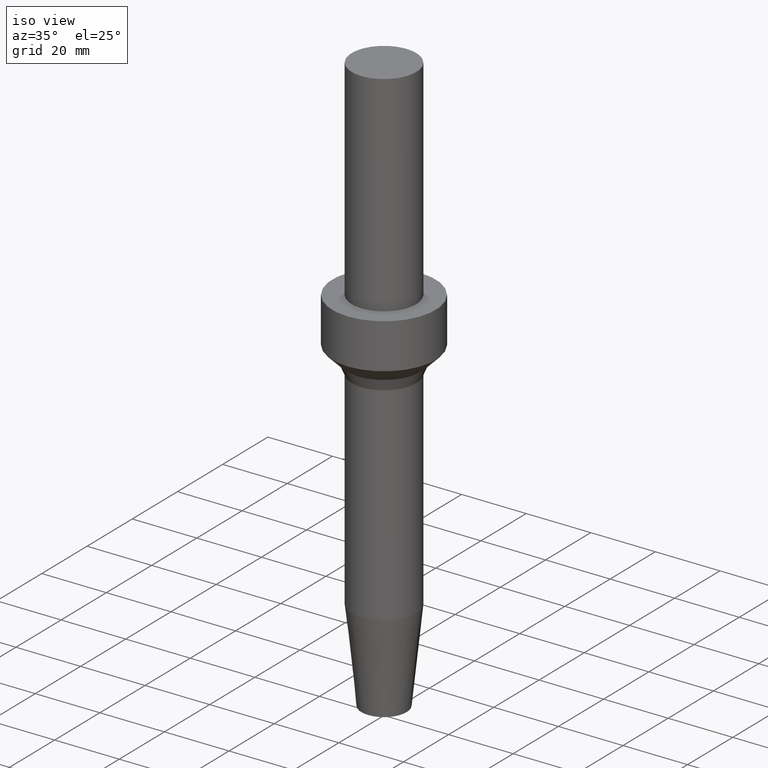
[diagram: clean part render]
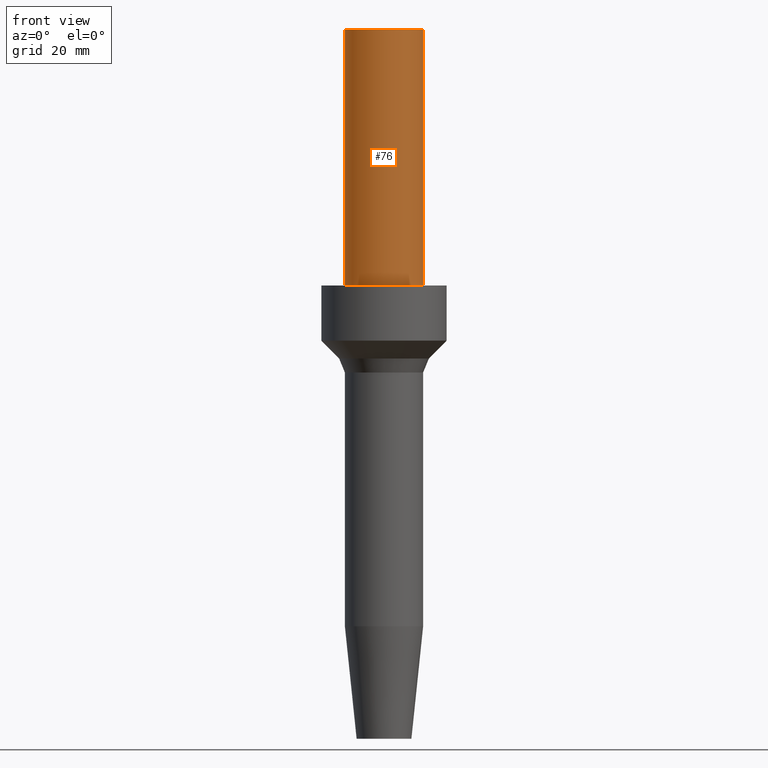
[diagram: tour spotlight — one face highlighted and labeled with its STEP entity id]
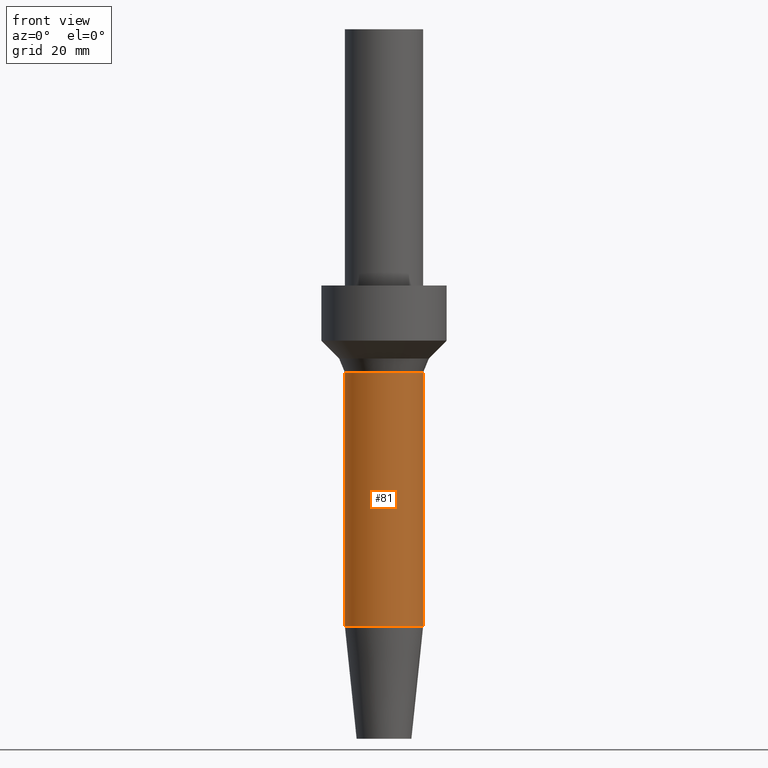
[diagram: tour spotlight — one face highlighted and labeled with its STEP entity id]
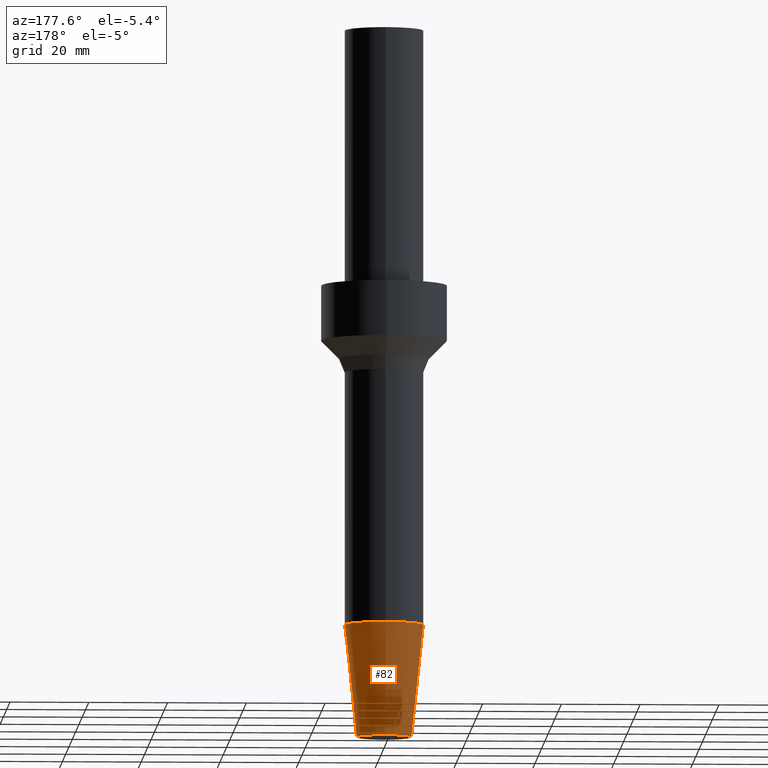
[diagram: tour spotlight — one face highlighted and labeled with its STEP entity id]
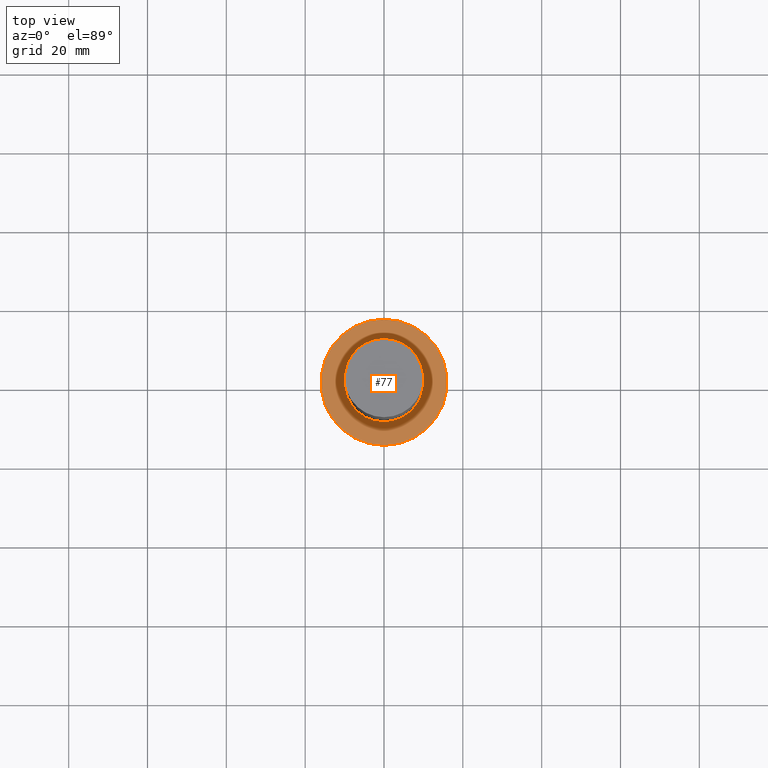
[diagram: tour spotlight — one face highlighted and labeled with its STEP entity id]
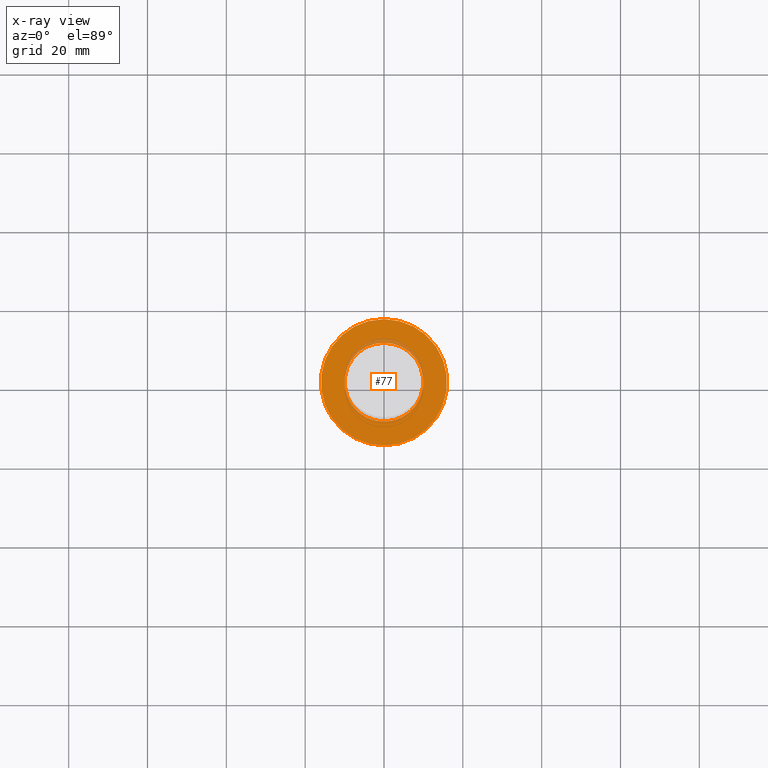
[diagram: x-ray of the same camera — body ghosted, this tour face saturated]
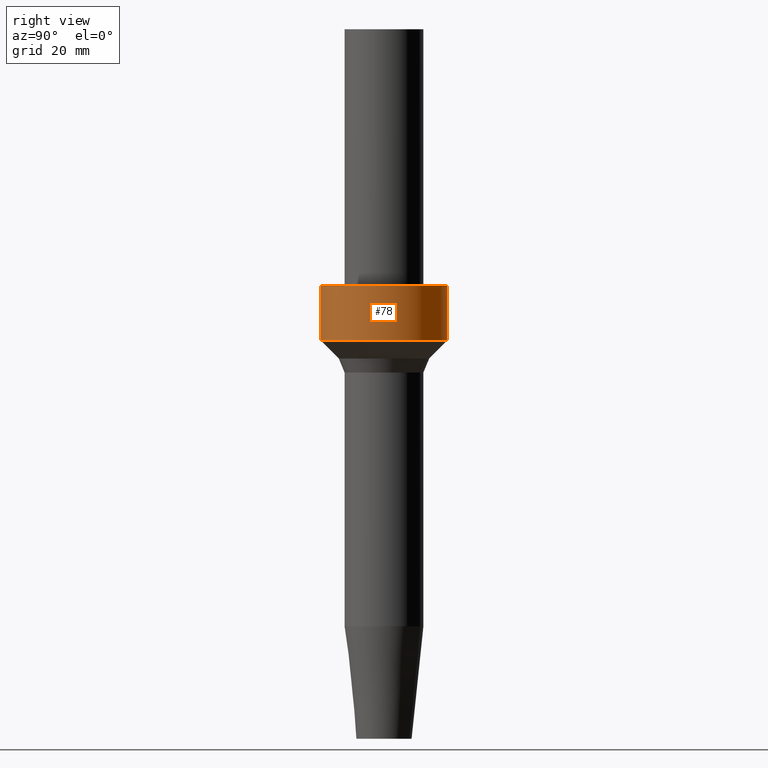
[diagram: tour spotlight — one face highlighted and labeled with its STEP entity id]
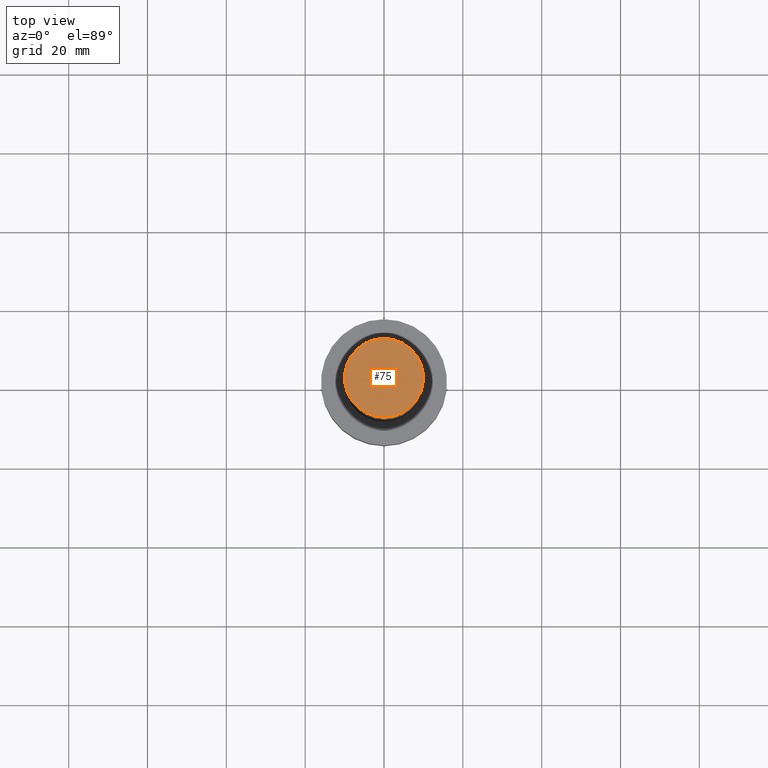
[diagram: tour spotlight — one face highlighted and labeled with its STEP entity id]
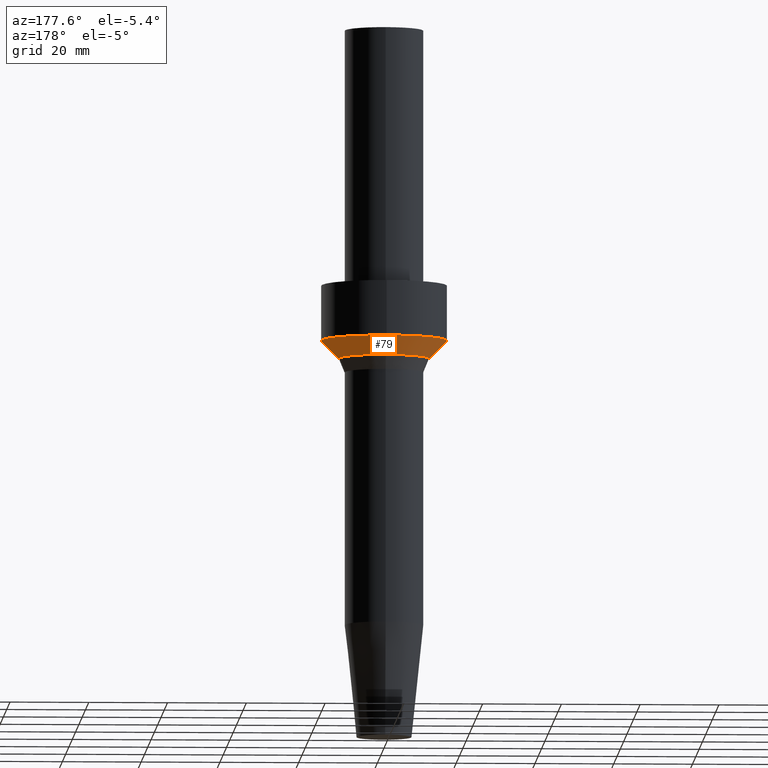
[diagram: tour spotlight — one face highlighted and labeled with its STEP entity id]
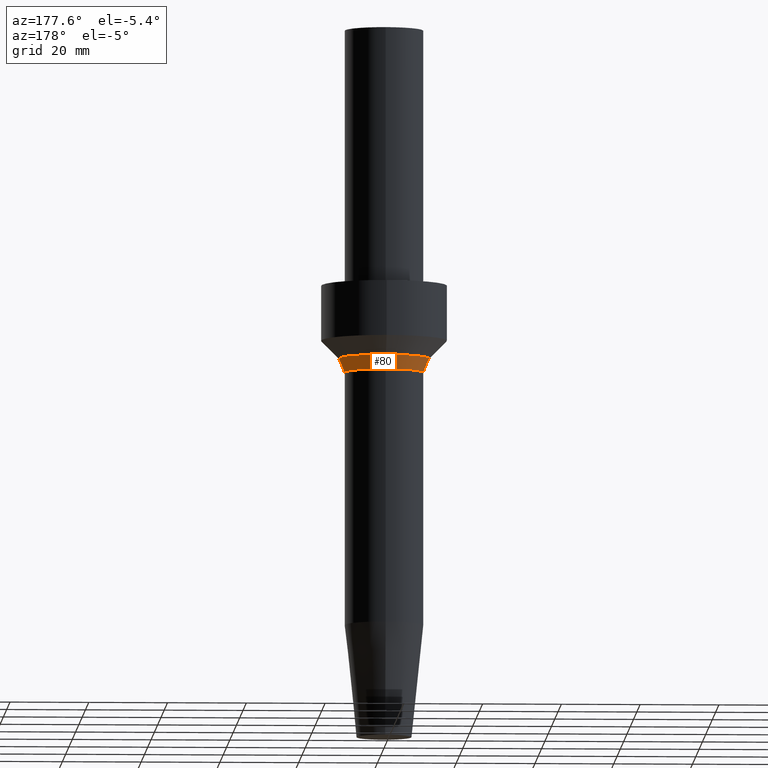
[diagram: tour spotlight — one face highlighted and labeled with its STEP entity id]
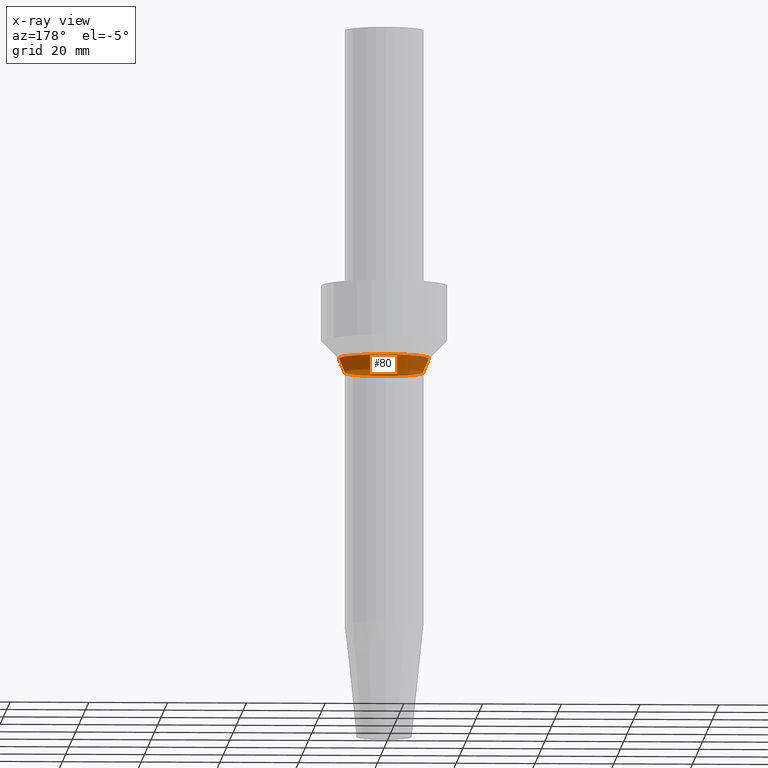
[diagram: x-ray of the same camera — body ghosted, this tour face saturated]
A machine part: a face-by-face anatomy tour. The part has 9 B-rep faces; the first image is the clean iso view, then the 8 largest visible faces are spotlighted one at a time (largest first), each with its STEP entity span.

Face 1 — front view, entity #76. In plain terms, the highlighted cylindrical surface (bore or boss wall) has radius 10 mm, axis along (-0, 0, 1).
Definition (entity closure, byte-faithful):
#76=ADVANCED_FACE('',(#87,#88),#89,.T.);
#87=FACE_BOUND('',#112,.T.);
#88=FACE_BOUND('',#113,.T.);
#89=CYLINDRICAL_SURFACE('',#114,10.0000000004299);
#112=EDGE_LOOP('',(#139));
#113=EDGE_LOOP('',(#140));
#114=AXIS2_PLACEMENT_3D('',#141,#142,#143);
#139=ORIENTED_EDGE('',*,*,#179,.F.);
#140=ORIENTED_EDGE('',*,*,#178,.T.);
#141=CARTESIAN_POINT('',(-9.03177014371183E-015,1.64611849873016E-014,147.500000000002));
#142=DIRECTION('',(-6.12323399573677E-017,1.11601254151196E-016,1.0));
#143=DIRECTION('',(2.0064532030856E-033,1.0,-1.11601254151196E-016));
#178=EDGE_CURVE('',#186,#186,#187,.T.);
#179=EDGE_CURVE('',#188,#188,#189,.T.);
#186=VERTEX_POINT('',#202);
#187=CIRCLE('',#203,10.0000000004298);
#188=VERTEX_POINT('',#204);
#189=CIRCLE('',#205,10.0000000004299);
#202=CARTESIAN_POINT('',(-1.10218211923263E-014,10.0000000004298,180.000000000002));
#203=AXIS2_PLACEMENT_3D('',#218,#219,#220);
#204=CARTESIAN_POINT('',(-7.04171909509739E-015,10.0000000004299,115.000000000002));
#205=AXIS2_PLACEMENT_3D('',#221,#222,#223);
#218=CARTESIAN_POINT('',(-1.10218211923263E-014,2.00882257472155E-014,180.000000000002));
#219=DIRECTION('',(6.12323399573677E-017,-1.11601254151196E-016,-1.0));
#220=DIRECTION('',(2.0064532030856E-033,1.0,-1.11601254151196E-016));
#221=CARTESIAN_POINT('',(-7.04171909509739E-015,1.28341442273877E-014,115.000000000002));
#222=DIRECTION('',(6.12323399573677E-017,-1.11601254151196E-016,-1.0));
#223=DIRECTION('',(2.0064532030856E-033,1.0,-1.11601254151196E-016));

Face 2 — front view, entity #81. In plain terms, the highlighted cylindrical surface (bore or boss wall) has radius 10 mm, axis along (-0, 0, 1).
Definition (entity closure, byte-faithful):
#81=ADVANCED_FACE('',(#102,#103),#104,.T.);
#102=FACE_BOUND('',#127,.T.);
#103=FACE_BOUND('',#128,.T.);
#104=CYLINDRICAL_SURFACE('',#129,10.0000000000004);
#127=EDGE_LOOP('',(#164));
#128=EDGE_LOOP('',(#165));
#129=AXIS2_PLACEMENT_3D('',#166,#167,#168);
#164=ORIENTED_EDGE('',*,*,#184,.F.);
#165=ORIENTED_EDGE('',*,*,#183,.T.);
#166=CARTESIAN_POINT('',(-3.71900818191973E-015,6.77821519788024E-015,60.736012775423));
#167=DIRECTION('',(-6.12323399573677E-017,1.11601254151196E-016,1.0));
#168=DIRECTION('',(2.0064532030856E-033,1.0,-1.11601254151196E-016));
#183=EDGE_CURVE('',#196,#196,#197,.T.);
#184=EDGE_CURVE('',#198,#198,#199,.T.);
#196=VERTEX_POINT('',#212);
#197=CIRCLE('',#213,10.0000000000004);
#198=VERTEX_POINT('',#214);
#199=CIRCLE('',#215,10.0000000000003);
#212=CARTESIAN_POINT('',(-5.69025596761916E-015,10.0000000000004,92.9289321881369));
#213=AXIS2_PLACEMENT_3D('',#233,#234,#235);
#214=CARTESIAN_POINT('',(-1.7477603962203E-015,10.0000000000004,28.5430933627092));
#215=AXIS2_PLACEMENT_3D('',#236,#237,#238);
#233=CARTESIAN_POINT('',(-5.69025596761916E-015,1.03709853791275E-014,92.9289321881369));
#234=DIRECTION('',(6.12323399573677E-017,-1.11601254151196E-016,-1.0));
#235=DIRECTION('',(2.0064532030856E-033,1.0,-1.11601254151196E-016));
#236=CARTESIAN_POINT('',(-1.7477603962203E-015,3.18544501663299E-015,28.5430933627092));
#237=DIRECTION('',(6.12323399573677E-017,-1.11601254151196E-016,-1.0));
#238=DIRECTION('',(2.00645320308561E-033,1.0,-1.11601254151196E-016));

Face 3 — auxiliary view, entity #82. In plain terms, the highlighted conical surface has half-angle 6 deg.
Definition (entity closure, byte-faithful):
#82=ADVANCED_FACE('',(#105,#106),#107,.T.);
#105=FACE_BOUND('',#130,.T.);
#106=FACE_BOUND('',#131,.T.);
#107=CONICAL_SURFACE('',#132,8.49999999999799,0.104719755119672);
#130=EDGE_LOOP('',(#169));
#131=EDGE_LOOP('',(#170));
#132=AXIS2_PLACEMENT_3D('',#171,#172,#173);
#169=ORIENTED_EDGE('',*,*,#185,.F.);
#170=ORIENTED_EDGE('',*,*,#184,.T.);
#171=CARTESIAN_POINT('',(-8.73880198110147E-016,1.59272250831647E-015,14.2715466813546));
#172=DIRECTION('',(-6.12323399573677E-017,1.11601254151196E-016,1.0));
#173=DIRECTION('',(2.0064532030856E-033,1.0,-1.11601254151196E-016));
#184=EDGE_CURVE('',#198,#198,#199,.T.);
#185=EDGE_CURVE('',#200,#200,#201,.T.);
#198=VERTEX_POINT('',#214);
#199=CIRCLE('',#215,10.0000000000003);
#200=VERTEX_POINT('',#216);
#201=CIRCLE('',#217,6.99999999999564);
#214=CARTESIAN_POINT('',(-1.7477603962203E-015,10.0000000000004,28.5430933627092));
#215=AXIS2_PLACEMENT_3D('',#236,#237,#238);
#216=CARTESIAN_POINT('',(0.0,6.99999999999564,0.0));
#217=AXIS2_PLACEMENT_3D('',#239,#240,#241);
#236=CARTESIAN_POINT('',(-1.7477603962203E-015,3.18544501663299E-015,28.5430933627092));
#237=DIRECTION('',(6.12323399573677E-017,-1.11601254151196E-016,-1.0));
#238=DIRECTION('',(2.00645320308561E-033,1.0,-1.11601254151196E-016));
#239=CARTESIAN_POINT('',(0.0,0.0,0.0));
#240=DIRECTION('',(6.12323399573677E-017,-1.11601254151196E-016,-1.0));
#241=DIRECTION('',(2.0064532030856E-033,1.0,-1.11601254151196E-016));

Face 4 — top view, entity #77. An x-ray twin of the same camera follows (body ghosted, this face saturated) — the face is partly hidden behind the body. In plain terms, the highlighted planar face has unit normal (-0, -0, 1).
Definition (entity closure, byte-faithful):
#77=ADVANCED_FACE('',(#90,#91),#92,.T.);
#90=FACE_OUTER_BOUND('',#115,.T.);
#91=FACE_BOUND('',#116,.T.);
#92=PLANE('',#117);
#115=EDGE_LOOP('',(#144));
#116=EDGE_LOOP('',(#145));
#117=AXIS2_PLACEMENT_3D('',#146,#147,#148);
#144=ORIENTED_EDGE('',*,*,#180,.F.);
#145=ORIENTED_EDGE('',*,*,#179,.T.);
#146=CARTESIAN_POINT('',(-7.04171909509741E-015,13.0000000002153,115.000000000002));
#147=DIRECTION('',(-6.12323399573677E-017,-1.20914729767771E-013,1.0));
#148=DIRECTION('',(7.40871899172419E-030,-1.0,-1.20914729767771E-013));
#179=EDGE_CURVE('',#188,#188,#189,.T.);
#180=EDGE_CURVE('',#190,#190,#191,.T.);
#188=VERTEX_POINT('',#204);
#189=CIRCLE('',#205,10.0000000004299);
#190=VERTEX_POINT('',#206);
#191=CIRCLE('',#207,16.0000000000007);
#204=CARTESIAN_POINT('',(-7.04171909509739E-015,10.0000000004299,115.000000000002));
#205=AXIS2_PLACEMENT_3D('',#221,#222,#223);
#206=CARTESIAN_POINT('',(-7.04171909509743E-015,16.0000000000008,115.000000000002));
#207=AXIS2_PLACEMENT_3D('',#224,#225,#226);
#221=CARTESIAN_POINT('',(-7.04171909509739E-015,1.28341442273877E-014,115.000000000002));
#222=DIRECTION('',(6.12323399573677E-017,-1.11601254151196E-016,-1.0));
#223=DIRECTION('',(2.0064532030856E-033,1.0,-1.11601254151196E-016));
#224=CARTESIAN_POINT('',(-7.04171909509743E-015,1.28341442273878E-014,115.000000000002));
#225=DIRECTION('',(6.12323399573677E-017,-1.11601254151196E-016,-1.0));
#226=DIRECTION('',(2.00645320308561E-033,1.0,-1.11601254151196E-016));

Face 5 — right view, entity #78. In plain terms, the highlighted cylindrical surface (bore or boss wall) has radius 16 mm, axis along (-0, 0, 1).
Definition (entity closure, byte-faithful):
#78=ADVANCED_FACE('',(#93,#94),#95,.T.);
#93=FACE_BOUND('',#118,.T.);
#94=FACE_BOUND('',#119,.T.);
#95=CYLINDRICAL_SURFACE('',#120,16.0000000000006);
#118=EDGE_LOOP('',(#149));
#119=EDGE_LOOP('',(#150));
#120=AXIS2_PLACEMENT_3D('',#151,#152,#153);
#149=ORIENTED_EDGE('',*,*,#181,.F.);
#150=ORIENTED_EDGE('',*,*,#180,.T.);
#151=CARTESIAN_POINT('',(-6.61309271539587E-015,1.20529354483295E-014,108.000000000003));
#152=DIRECTION('',(-6.12323399573677E-017,1.11601254151196E-016,1.0));
#153=DIRECTION('',(2.00645320308561E-033,1.0,-1.11601254151196E-016));
#180=EDGE_CURVE('',#190,#190,#191,.T.);
#181=EDGE_CURVE('',#192,#192,#193,.T.);
#190=VERTEX_POINT('',#206);
#191=CIRCLE('',#207,16.0000000000007);
#192=VERTEX_POINT('',#208);
#193=CIRCLE('',#209,16.0000000000005);
#206=CARTESIAN_POINT('',(-7.04171909509743E-015,16.0000000000008,115.000000000002));
#207=AXIS2_PLACEMENT_3D('',#224,#225,#226);
#208=CARTESIAN_POINT('',(-6.18446633569431E-015,16.0000000000005,101.000000000003));
#209=AXIS2_PLACEMENT_3D('',#227,#228,#229);
#224=CARTESIAN_POINT('',(-7.04171909509743E-015,1.28341442273878E-014,115.000000000002));
#225=DIRECTION('',(6.12323399573677E-017,-1.11601254151196E-016,-1.0));
#226=DIRECTION('',(2.00645320308561E-033,1.0,-1.11601254151196E-016));
#227=CARTESIAN_POINT('',(-6.18446633569431E-015,1.12717266692711E-014,101.000000000003));
#228=DIRECTION('',(6.12323399573677E-017,-1.11601254151196E-016,-1.0));
#229=DIRECTION('',(2.0064532030856E-033,1.0,-1.11601254151196E-016));

Face 6 — top view, entity #75. In plain terms, the highlighted planar face has unit normal (-0, -0, 1).
Definition (entity closure, byte-faithful):
#75=ADVANCED_FACE('',(#85),#86,.T.);
#85=FACE_OUTER_BOUND('',#110,.T.);
#86=PLANE('',#111);
#110=EDGE_LOOP('',(#135));
#111=AXIS2_PLACEMENT_3D('',#136,#137,#138);
#135=ORIENTED_EDGE('',*,*,#178,.F.);
#136=CARTESIAN_POINT('',(-1.10218211923263E-014,5.00000000021493,180.000000000001));
#137=DIRECTION('',(-6.12323399573677E-017,-3.88727260841398E-014,1.0));
#138=DIRECTION('',(2.38509513138445E-030,-1.0,-3.88727260841398E-014));
#178=EDGE_CURVE('',#186,#186,#187,.T.);
#186=VERTEX_POINT('',#202);
#187=CIRCLE('',#203,10.0000000004298);
#202=CARTESIAN_POINT('',(-1.10218211923263E-014,10.0000000004298,180.000000000002));
#203=AXIS2_PLACEMENT_3D('',#218,#219,#220);
#218=CARTESIAN_POINT('',(-1.10218211923263E-014,2.00882257472155E-014,180.000000000002));
#219=DIRECTION('',(6.12323399573677E-017,-1.11601254151196E-016,-1.0));
#220=DIRECTION('',(2.0064532030856E-033,1.0,-1.11601254151196E-016));

Face 7 — auxiliary view, entity #79. In plain terms, the highlighted conical surface has half-angle 45 deg.
Definition (entity closure, byte-faithful):
#79=ADVANCED_FACE('',(#96,#97),#98,.T.);
#96=FACE_BOUND('',#121,.T.);
#97=FACE_BOUND('',#122,.T.);
#98=CONICAL_SURFACE('',#123,13.732233047034,0.785398163397403);
#121=EDGE_LOOP('',(#154));
#122=EDGE_LOOP('',(#155));
#123=AXIS2_PLACEMENT_3D('',#156,#157,#158);
#154=ORIENTED_EDGE('',*,*,#182,.F.);
#155=ORIENTED_EDGE('',*,*,#181,.T.);
#156=CARTESIAN_POINT('',(-6.04560565868616E-015,1.10186410331974E-014,98.7322330470361));
#157=DIRECTION('',(-6.12323399573677E-017,1.11601254151196E-016,1.0));
#158=DIRECTION('',(2.0064532030856E-033,1.0,-1.11601254151196E-016));
#181=EDGE_CURVE('',#192,#192,#193,.T.);
#182=EDGE_CURVE('',#194,#194,#195,.T.);
#192=VERTEX_POINT('',#208);
#193=CIRCLE('',#209,16.0000000000005);
#194=VERTEX_POINT('',#210);
#195=CIRCLE('',#211,11.4644660940675);
#208=CARTESIAN_POINT('',(-6.18446633569431E-015,16.0000000000005,101.000000000003));
#209=AXIS2_PLACEMENT_3D('',#227,#228,#229);
#210=CARTESIAN_POINT('',(-5.90674498167802E-015,11.4644660940675,96.4644660940694));
#211=AXIS2_PLACEMENT_3D('',#230,#231,#232);
#227=CARTESIAN_POINT('',(-6.18446633569431E-015,1.12717266692711E-014,101.000000000003));
#228=DIRECTION('',(6.12323399573677E-017,-1.11601254151196E-016,-1.0));
#229=DIRECTION('',(2.0064532030856E-033,1.0,-1.11601254151196E-016));
#230=CARTESIAN_POINT('',(-5.90674498167802E-015,1.07655553971236E-014,96.4644660940694));
#231=DIRECTION('',(6.12323399573677E-017,-1.11601254151196E-016,-1.0));
#232=DIRECTION('',(2.0064532030856E-033,1.0,-1.11601254151196E-016));

Face 8 — auxiliary view, entity #80. An x-ray twin of the same camera follows (body ghosted, this face saturated) — the face is partly hidden behind the body. In plain terms, the highlighted conical surface has half-angle 22.5 deg.
Definition (entity closure, byte-faithful):
#80=ADVANCED_FACE('',(#99,#100),#101,.T.);
#99=FACE_BOUND('',#124,.T.);
#100=FACE_BOUND('',#125,.T.);
#101=CONICAL_SURFACE('',#126,10.7322330470339,0.3926990816987);
#124=EDGE_LOOP('',(#159));
#125=EDGE_LOOP('',(#160));
#126=AXIS2_PLACEMENT_3D('',#161,#162,#163);
#159=ORIENTED_EDGE('',*,*,#183,.F.);
#160=ORIENTED_EDGE('',*,*,#182,.T.);
#161=CARTESIAN_POINT('',(-5.79850047464859E-015,1.05682703881256E-014,94.6966991411031));
#162=DIRECTION('',(-6.12323399573677E-017,1.11601254151196E-016,1.0));
#163=DIRECTION('',(2.00645320308561E-033,1.0,-1.11601254151196E-016));
#182=EDGE_CURVE('',#194,#194,#195,.T.);
#183=EDGE_CURVE('',#196,#196,#197,.T.);
#194=VERTEX_POINT('',#210);
#195=CIRCLE('',#211,11.4644660940675);
#196=VERTEX_POINT('',#212);
#197=CIRCLE('',#213,10.0000000000004);
#210=CARTESIAN_POINT('',(-5.90674498167802E-015,11.4644660940675,96.4644660940694));
#211=AXIS2_PLACEMENT_3D('',#230,#231,#232);
#212=CARTESIAN_POINT('',(-5.69025596761916E-015,10.0000000000004,92.9289321881369));
#213=AXIS2_PLACEMENT_3D('',#233,#234,#235);
#230=CARTESIAN_POINT('',(-5.90674498167802E-015,1.07655553971236E-014,96.4644660940694));
#231=DIRECTION('',(6.12323399573677E-017,-1.11601254151196E-016,-1.0));
#232=DIRECTION('',(2.0064532030856E-033,1.0,-1.11601254151196E-016));
#233=CARTESIAN_POINT('',(-5.69025596761916E-015,1.03709853791275E-014,92.9289321881369));
#234=DIRECTION('',(6.12323399573677E-017,-1.11601254151196E-016,-1.0));
#235=DIRECTION('',(2.0064532030856E-033,1.0,-1.11601254151196E-016));